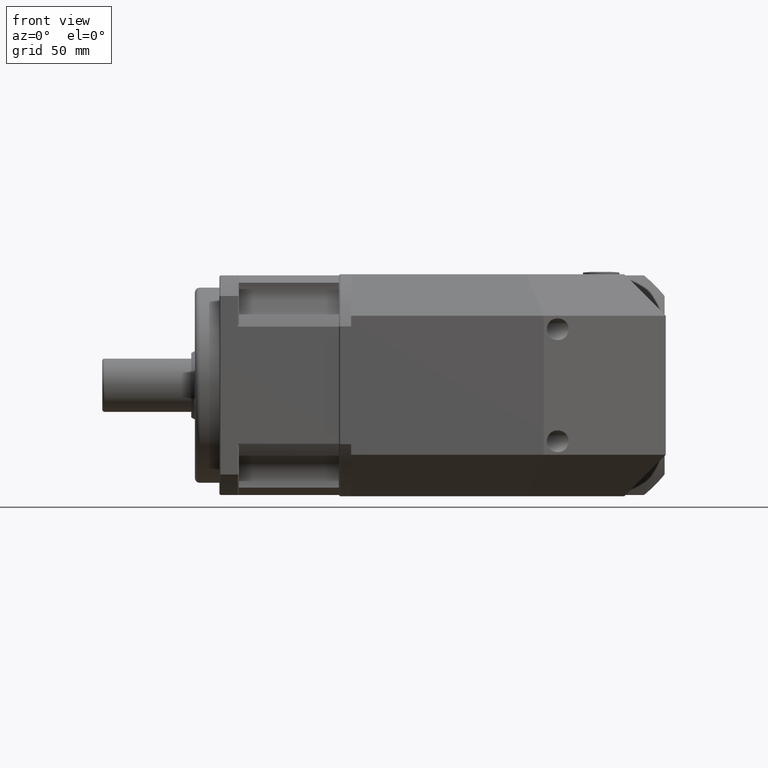
[diagram: clean part render]
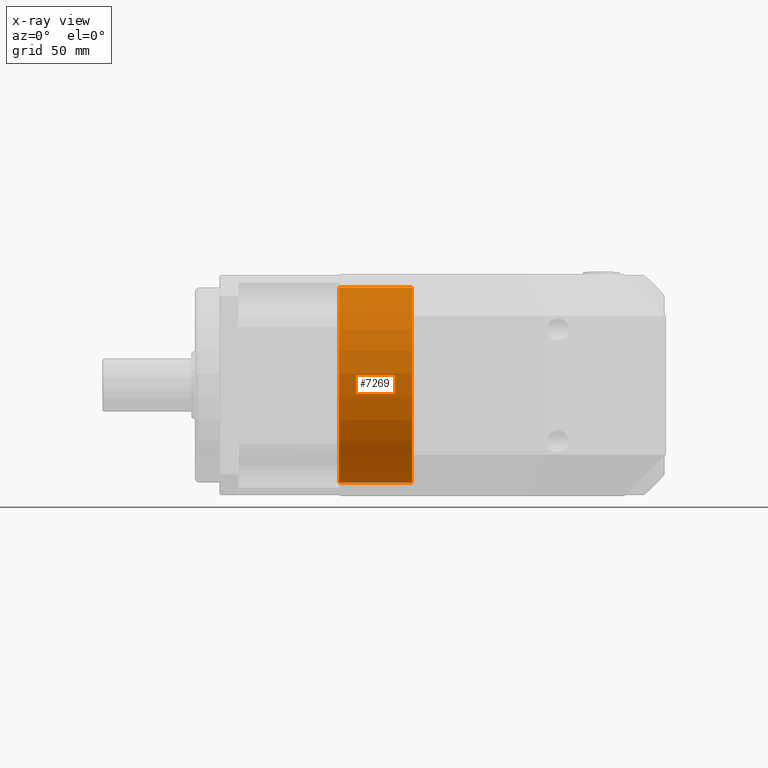
[diagram: x-ray — body ghosted, one internal face saturated and labeled with its STEP entity id]
A machine part, front view, then the same camera in x-ray: the body is ghosted and one INTERNAL B-rep face — a face not visible from any outside direction — is saturated and labeled: STEP entity #7269.
In plain terms, the highlighted cylindrical surface (bore or boss wall) has radius 40 mm, axis along (1, -0, -0).
Its self-contained STEP definition (entity closure, byte-faithful):
#1151=CYLINDRICAL_SURFACE('',#8079,40.);
#1374=FACE_BOUND('',#2449,.T.);
#1797=FACE_OUTER_BOUND('',#2448,.T.);
#2448=EDGE_LOOP('',(#5917));
#2449=EDGE_LOOP('',(#5918));
#2839=CIRCLE('',#8076,40.);
#2840=CIRCLE('',#8078,40.);
#3425=VERTEX_POINT('',#12454);
#3426=VERTEX_POINT('',#12457);
#4278=EDGE_CURVE('',#3425,#3425,#2839,.T.);
#4279=EDGE_CURVE('',#3426,#3426,#2840,.T.);
#5917=ORIENTED_EDGE('',*,*,#4279,.T.);
#5918=ORIENTED_EDGE('',*,*,#4278,.F.);
#7269=ADVANCED_FACE('',(#1797,#1374),#1151,.F.);
#8076=AXIS2_PLACEMENT_3D('',#12455,#9941,#9942);
#8078=AXIS2_PLACEMENT_3D('',#12458,#9945,#9946);
#8079=AXIS2_PLACEMENT_3D('',#12459,#9947,#9948);
#9941=DIRECTION('center_axis',(1.,-1.23658678782831E-15,-5.37870520386649E-15));
#9942=DIRECTION('ref_axis',(5.78496549379608E-15,-1.32829074986718E-16,
1.));
#9945=DIRECTION('center_axis',(1.,-1.33448673800559E-15,-5.78496549379608E-15));
#9946=DIRECTION('ref_axis',(5.78496549379608E-15,-1.32829074986718E-16,
1.));
#9947=DIRECTION('center_axis',(1.,-1.33448673800559E-15,-5.78496549379608E-15));
#9948=DIRECTION('ref_axis',(5.78496549379608E-15,-1.32829074986718E-16,
1.));
#12454=CARTESIAN_POINT('',(-13.9245010391759,111.691471100404,-36.4938984203011));
#12455=CARTESIAN_POINT('Origin',(-13.9245010391757,111.691471100404,3.50610157969894));
#12457=CARTESIAN_POINT('',(16.0754989608241,111.691471100404,-36.4938984203013));
#12458=CARTESIAN_POINT('Origin',(16.0754989608243,111.691471100404,3.50610157969876));
#12459=CARTESIAN_POINT('Origin',(-13.9245010391757,111.691471100404,3.50610157969894));